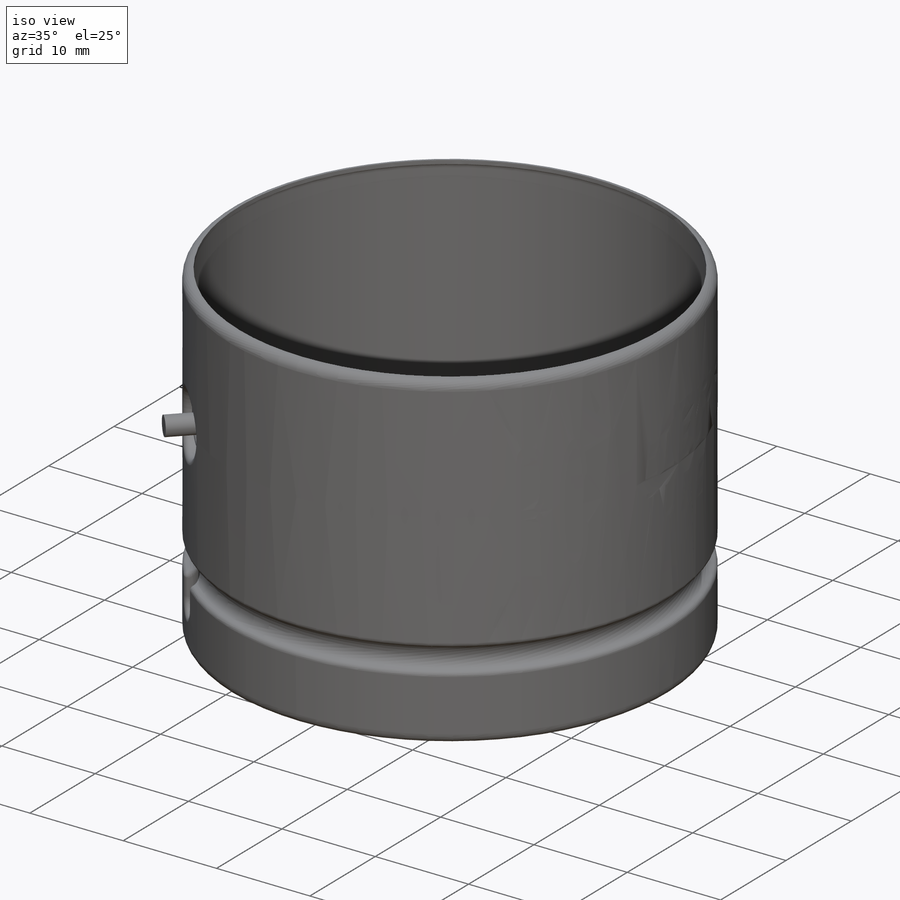
[diagram: iso view]
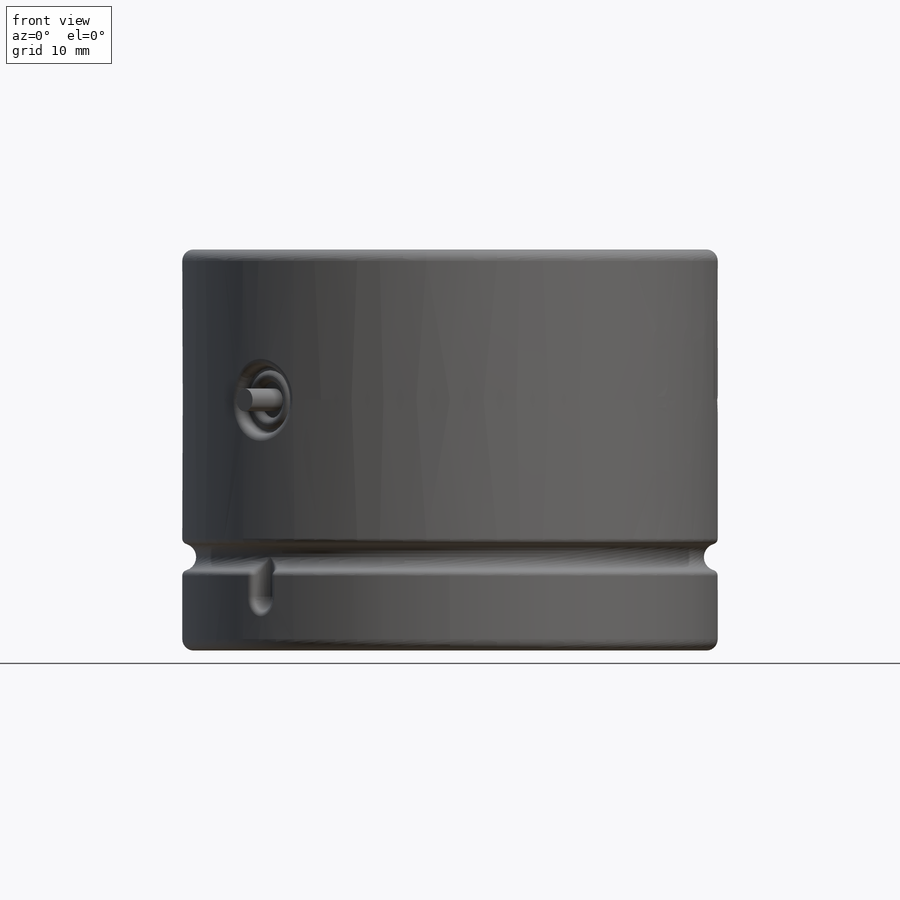
[diagram: front view]
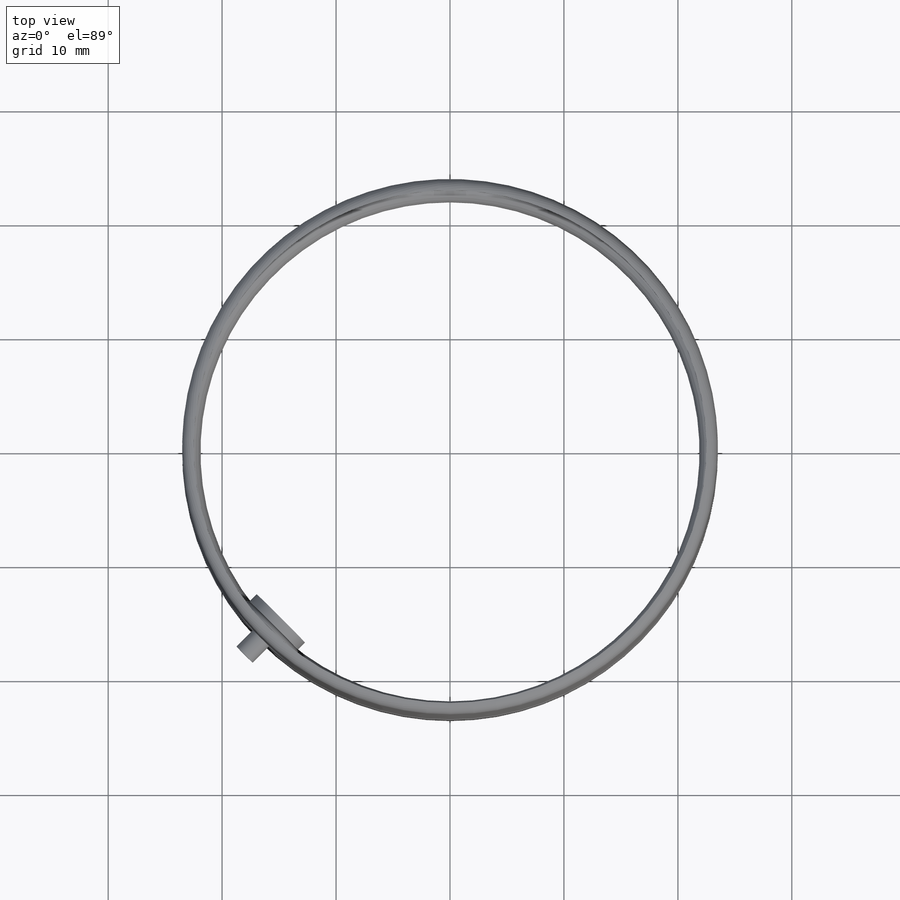
[diagram: top view]
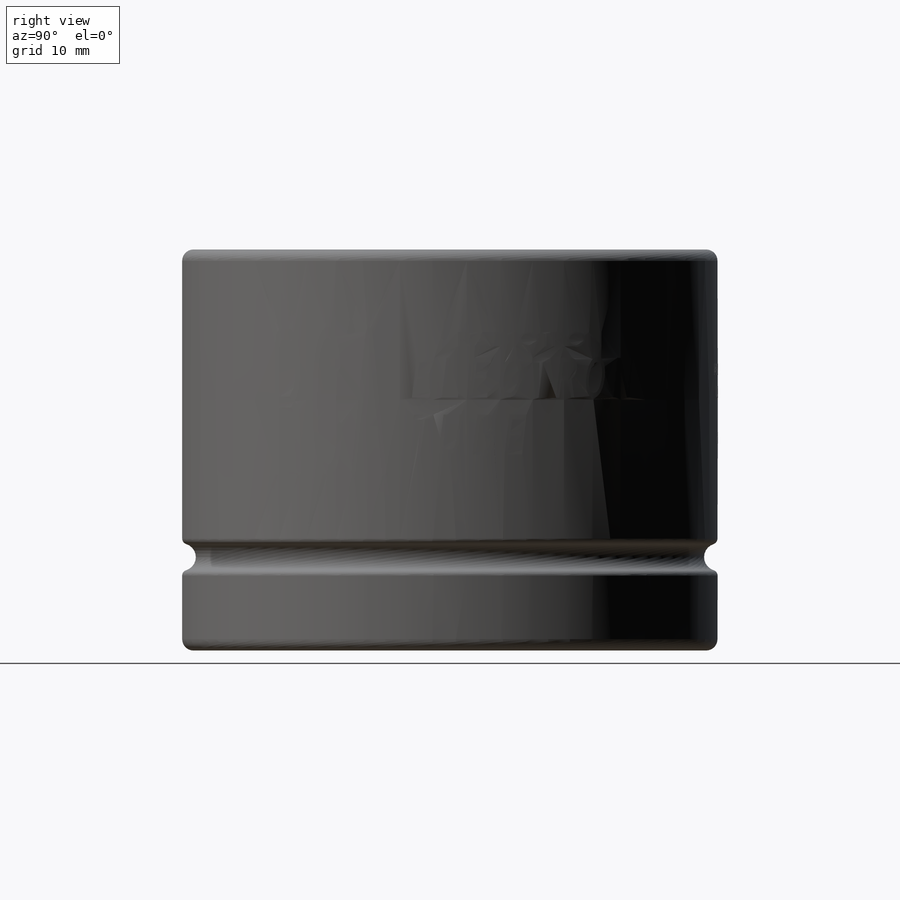
[diagram: right view]
SOLIDWORKS PART (.sldprt)
format: sldprt  version: not decoded by parser v0  size: 1,319,936 bytes
history: native  units: mm
features: sketch x6, plane x4, revolve x2, cut_revolve x2, fillet x2, shell x2, material x1 (+12 scaffold rows collapsed)
feature tree (31):
  scaffold x12  (default folders/planes/origin — collapsed)
  material  "1060 Alloy"
  sketch  "Sketch1"  dims[D4=1.2mm D5=1.0mm D6=0.5mm D1=47.0mm D2=35.2mm D3=27.0mm]
  revolve  "Revolve1"  Angle=360deg
  plane  "Plane1"
  plane  "Plane2"
  sketch  "Sketch2"  dims[c1.D5=0.3mm c1.D6=0.3083mm c1.D8=~0.505685mm c1.D9=0.2mm c1.D1=1.0mm c1.D2=6.0mm c1.D3=5.2mm c1.D4=3.2mm c2.D5=1.75mm c2.D7=0.3mm c2.D6=0.5mm c3.D7=13.2mm c3.D1=1.0mm]
  cut_revolve  "Cut-Revolve1"  Angle=360deg
  fillet  "Fillet1"  Radius=0.6mm
  sketch  "Sketch4"  dims[c1.D1=3.6mm c1.D2=1.2mm c2.D1=4.8mm]
  cut_revolve  "Cut-Revolve2"  Angle=360deg
  fillet  "Fillet3"  Radius=0.5mm
  shell  "Shell3"  Thickness=0.4mm
  sketch  "Sketch3"  dims[c1.D1=13.2mm c1.D2=25.5mm c1.D3=2.0mm c1.D4=4.0mm c1.D5=5.2mm c1.D6=3.2mm c1.D7=3.75mm c1.D8=3.2mm c1.D9=1.0mm c2.D4=4.5mm c2.D9=1.3mm c3.D4=6.0mm c3.D5=0.9mm c3.D9=4.5mm]
  revolve  "Revolve3"  Angle=360deg
  plane  "Plane3"  Offset=25mm
  sketch  "Sketch5"  dims[D1=17.0mm D2=18.0mm D3=13.0mm D4=8.5mm D5=19.5mm D6=3.5mm D7=3.5mm D8=0.5mm]
  plane  "Plane4"  Offset=25mm
  sketch  "Sketch6"  dims[c1.D1=11.0mm c1.D2=4.0mm c1.D3=2.5mm c1.D4=13.0mm c1.D5=1.5mm c1.D6=~1.945031mm c2.D6=90.0deg c3.D6=17.0mm]
  shell  "Wrap2"  Thickness=0.01mm
decode coverage: 14 of 14 modeling features carry decoded parameters
note: ~ marks probable driven/reference dimensions
note: suppression state not decoded; provenance and decode notes live in map.json
